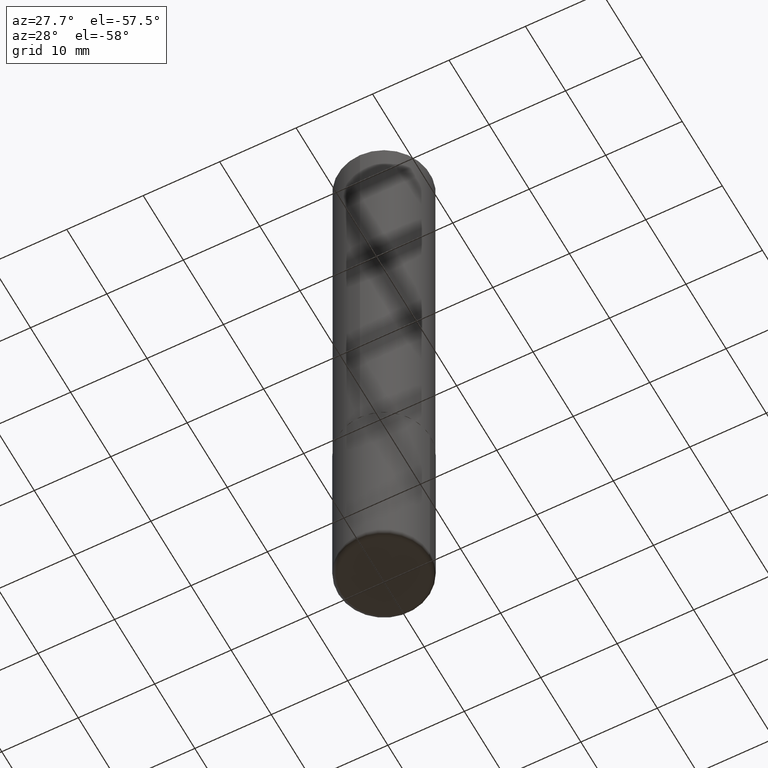
[diagram: clean part render]
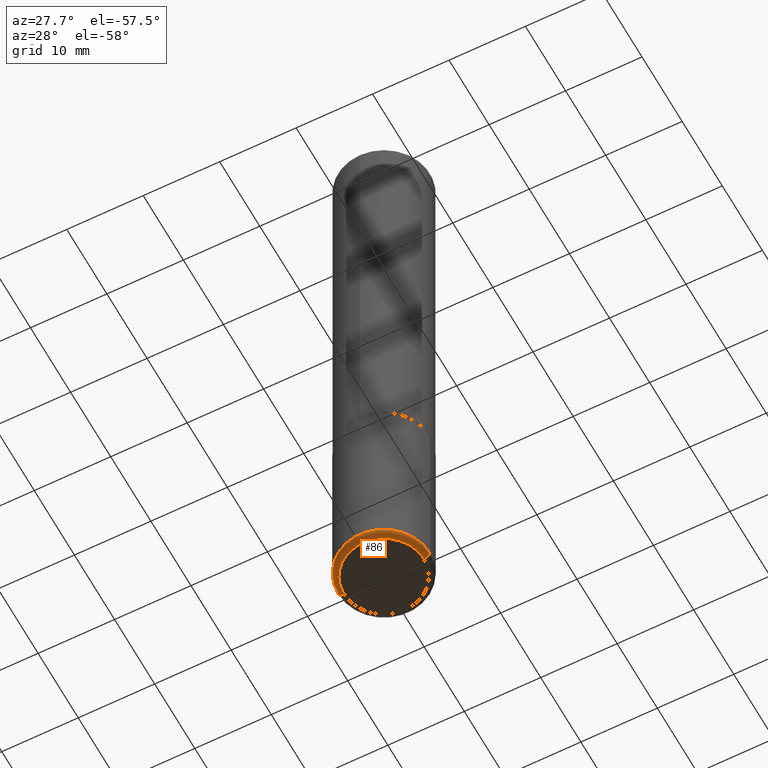
[diagram: same view with one face highlighted and labeled with its STEP entity id]
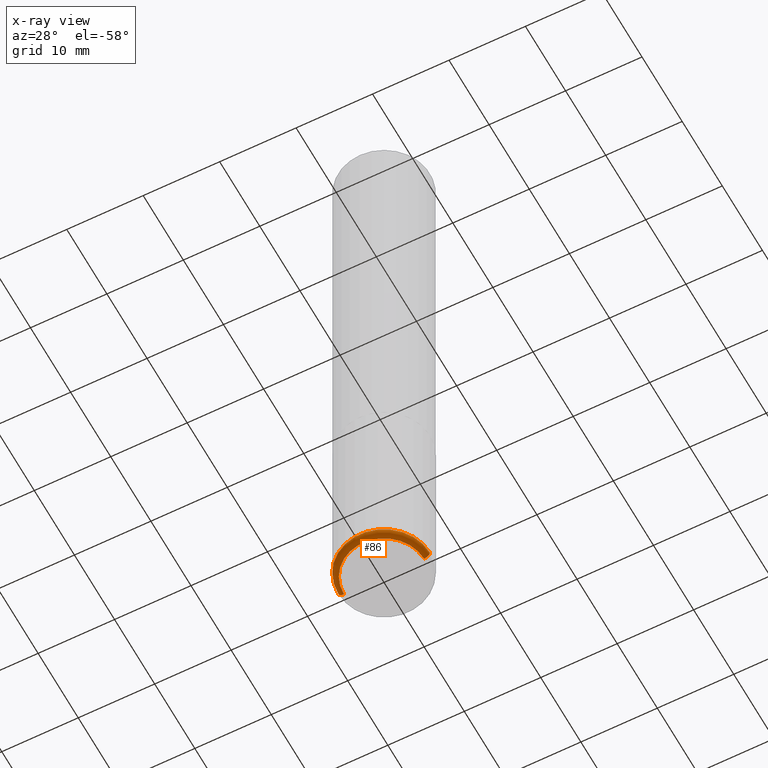
[diagram: x-ray of the same camera — body ghosted, the highlighted face saturated]
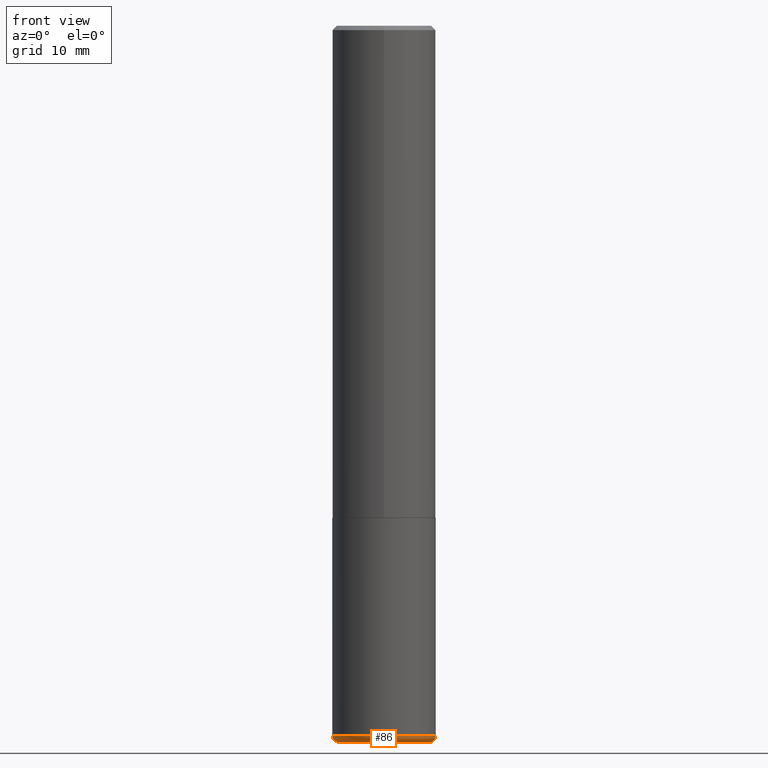
[diagram: same view with one face highlighted and labeled with its STEP entity id]
A machine part, auxiliary view. The second image highlights one B-rep face of the part: STEP entity #86.
The next image is the same camera in x-ray: the body ghosted, the highlighted face saturated — about 0% of this face is hidden behind the body in this view.
A second angle (front view) of the same face is appended — the face is thin or edge-on in the first view.
In plain terms, the highlighted toroidal blend (fillet) surface has major radius 5.2375 mm and minor (blend) radius 0.762 mm.
Its self-contained STEP definition (entity closure, byte-faithful):
#34 = CIRCLE ( 'NONE', #407, 0.2361999999999999933 ) ;
#37 = DIRECTION ( 'NONE',  ( 1.000000000000000000, -6.982962677686265133E-15, 4.883557194083111780E-29 ) ) ;
#40 = EDGE_CURVE ( 'NONE', #198, #291, #175, .T. ) ;
#41 = DIRECTION ( 'NONE',  ( 7.105427357601001859E-15, 1.000000000000000000, -3.491481338843145583E-15 ) ) ;
#59 = EDGE_LOOP ( 'NONE', ( #323, #344, #416, #95 ) ) ;
#65 = CARTESIAN_POINT ( 'NONE',  ( -0.2062000000000000222, -9.839230009635125344E-15, -3.237700000000000244 ) ) ;
#66 = CIRCLE ( 'NONE', #127, 0.2062000000000000222 ) ;
#82 = EDGE_CURVE ( 'NONE', #291, #349, #34, .T. ) ;
#86 = ADVANCED_FACE ( 'NONE', ( #364 ), #310, .T. ) ;
#94 = DIRECTION ( 'NONE',  ( -6.982962677686266711E-15, -1.000000000000000000, 3.491481338843145583E-15 ) ) ;
#95 = ORIENTED_EDGE ( 'NONE', *, *, #82, .F. ) ;
#112 = AXIS2_PLACEMENT_3D ( 'NONE', #263, #393, #37 ) ;
#127 = AXIS2_PLACEMENT_3D ( 'NONE', #272, #332, #400 ) ;
#130 = EDGE_CURVE ( 'NONE', #198, #341, #66, .T. ) ;
#146 = DIRECTION ( 'NONE',  ( -2.445468806185136597E-29, 3.491481338843145583E-15, 1.000000000000000000 ) ) ;
#154 = CARTESIAN_POINT ( 'NONE',  ( 0.2062000000000000222, -1.284900047507665623E-14, -3.267700000000000937 ) ) ;
#158 = CARTESIAN_POINT ( 'NONE',  ( 0.2062000000000000222, -1.274425603491136128E-14, -3.237700000000000244 ) ) ;
#175 = CIRCLE ( 'NONE', #361, 0.03000000000000025910 ) ;
#198 = VERTEX_POINT ( 'NONE', #377 ) ;
#203 = DIRECTION ( 'NONE',  ( 1.000000000000000000, -6.982962677686265133E-15, 0.000000000000000000 ) ) ;
#263 = CARTESIAN_POINT ( 'NONE',  ( 7.917694353785617077E-29, -1.130436913077245307E-14, -3.237700000000000244 ) ) ;
#272 = CARTESIAN_POINT ( 'NONE',  ( 7.991058417971172834E-29, -1.140911357093774960E-14, -3.267700000000000937 ) ) ;
#276 = AXIS2_PLACEMENT_3D ( 'NONE', #158, #94, #389 ) ;
#291 = VERTEX_POINT ( 'NONE', #406 ) ;
#293 = DIRECTION ( 'NONE',  ( -1.000000000000000000, 7.105427357600994759E-15, 0.000000000000000000 ) ) ;
#294 = CARTESIAN_POINT ( 'NONE',  ( 7.917694353785617077E-29, -1.130436913077245307E-14, -3.237700000000000244 ) ) ;
#297 = CIRCLE ( 'NONE', #276, 0.03000000000000025910 ) ;
#310 = TOROIDAL_SURFACE ( 'NONE', #112, 0.2062000000000000222, 0.03000000000000024175 ) ;
#323 = ORIENTED_EDGE ( 'NONE', *, *, #40, .F. ) ;
#332 = DIRECTION ( 'NONE',  ( -2.445468806185136597E-29, 3.491481338843145583E-15, 1.000000000000000000 ) ) ;
#341 = VERTEX_POINT ( 'NONE', #154 ) ;
#344 = ORIENTED_EDGE ( 'NONE', *, *, #130, .T. ) ;
#349 = VERTEX_POINT ( 'NONE', #409 ) ;
#361 = AXIS2_PLACEMENT_3D ( 'NONE', #65, #41, #293 ) ;
#364 = FACE_OUTER_BOUND ( 'NONE', #59, .T. ) ;
#377 = CARTESIAN_POINT ( 'NONE',  ( -0.2062000000000000222, -9.785020819353759273E-15, -3.267700000000000937 ) ) ;
#389 = DIRECTION ( 'NONE',  ( 1.000000000000000000, -6.982962677686273021E-15, 0.000000000000000000 ) ) ;
#391 = EDGE_CURVE ( 'NONE', #341, #349, #297, .T. ) ;
#393 = DIRECTION ( 'NONE',  ( -2.445468806185136597E-29, 3.491481338843145583E-15, 1.000000000000000000 ) ) ;
#400 = DIRECTION ( 'NONE',  ( 1.000000000000000000, -6.982962677686262766E-15, 0.000000000000000000 ) ) ;
#406 = CARTESIAN_POINT ( 'NONE',  ( -0.2362000000000001321, -9.626067188907095099E-15, -3.237700000000000244 ) ) ;
#407 = AXIS2_PLACEMENT_3D ( 'NONE', #294, #146, #203 ) ;
#409 = CARTESIAN_POINT ( 'NONE',  ( 0.2362000000000001321, -1.295374491524195117E-14, -3.237700000000000244 ) ) ;
#416 = ORIENTED_EDGE ( 'NONE', *, *, #391, .T. ) ;